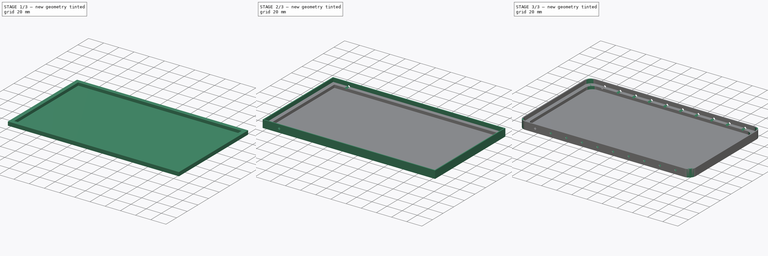
[diagram: build sequence overview — one tinted view per stage of 3, left to right]
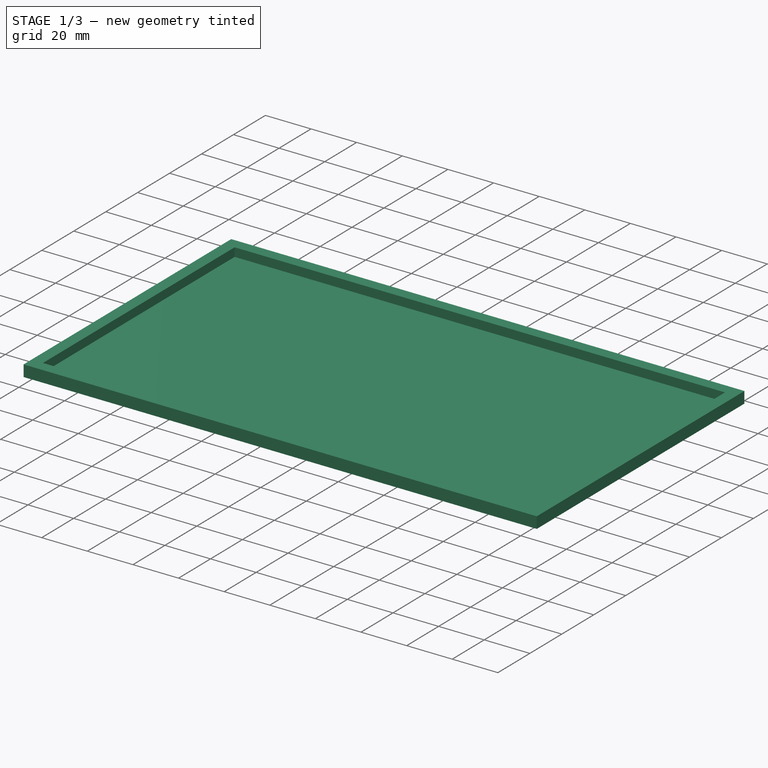
[diagram: stage 1 of 3 — iso view after this stage's code; geometry added in this stage tinted green]
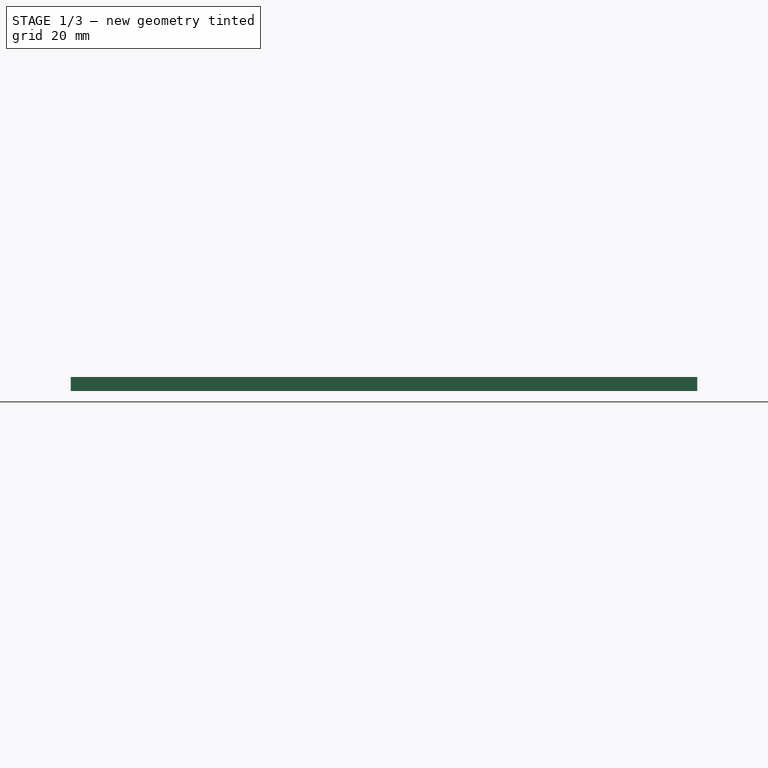
[diagram: stage 1 of 3 — front view after this stage's code; geometry added in this stage tinted green]
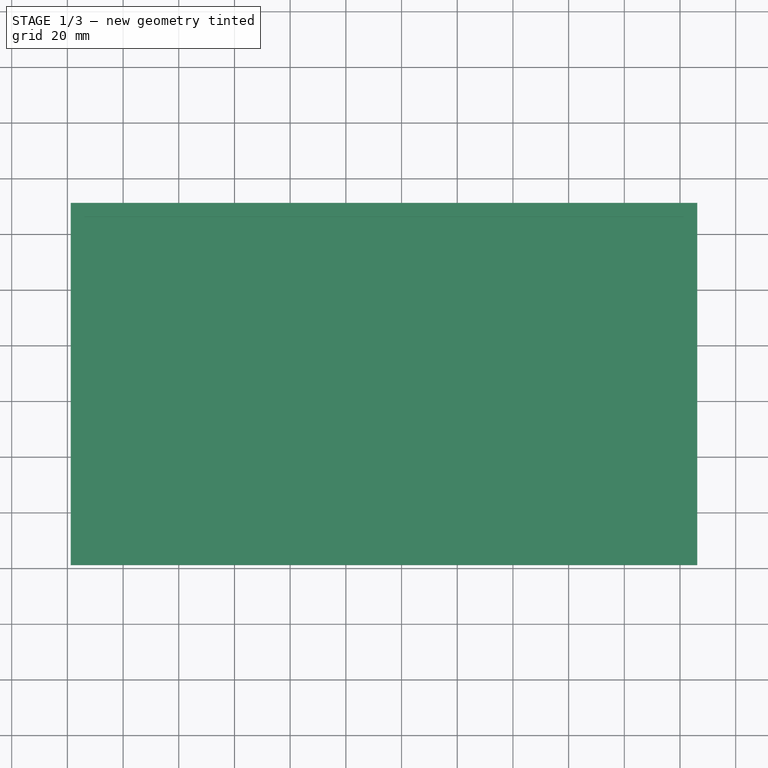
[diagram: stage 1 of 3 — top view after this stage's code; geometry added in this stage tinted green]
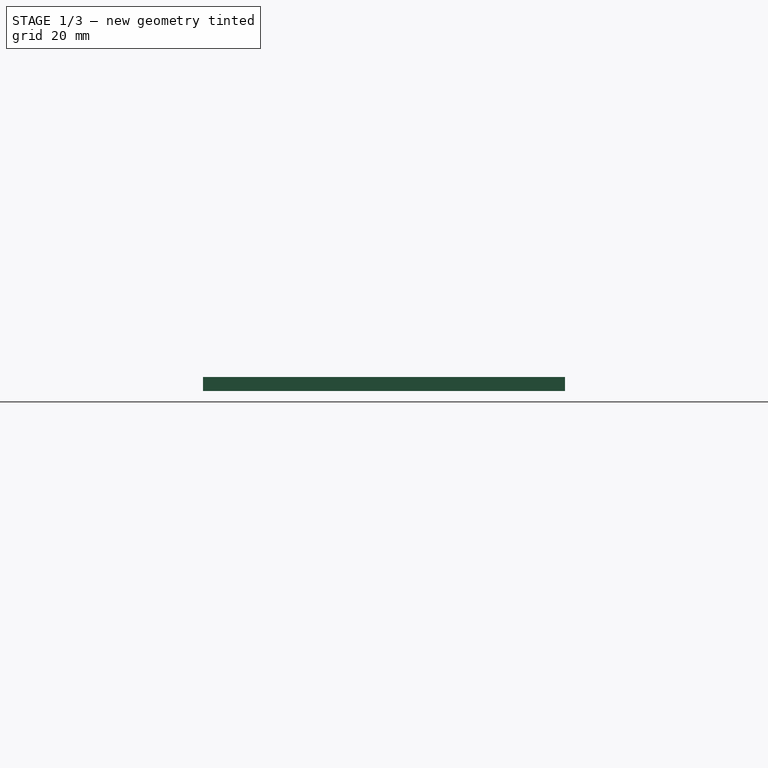
[diagram: stage 1 of 3 — right view after this stage's code; geometry added in this stage tinted green]
FCSTD DOCUMENT  (FreeCAD 1.0R39109 (Git))
Label: waterCollector
License: All rights reserved
LicenseURL: https://en.wikipedia.org/wiki/All_rights_reserved
objects: PartDesign::Pad×3, Sketcher::SketchObject×1, Spreadsheet::Sheet×1, PartDesign::SubtractiveBox×1, PartDesign::LinearPattern×1, PartDesign::Fillet×1, PartDesign::Body×1
note: 20 computed .brp shape members not serialized (recipe doc carries the construction recipe); baked Part::Feature solids carry a one-line shape summary decoded from their .brp

FEATURE [Sketcher::SketchObject] Sketch
  ArcFitTolerance = 1e-06
  AttachmentSupport = -> [XY_Plane]
  FullyConstrained = true
  MakeInternals = false
  MapMode = 5
  expr: Constraints[10] = <<constraints>>.tray_inner_h + 2 * <<constraints>>.wall_thickness
  expr: Constraints[19] = <<constraints>>.wall_thickness
  expr: Constraints[20] = <<constraints>>.wall_thickness
  expr: Constraints[21] = <<constraints>>.tray_inner_w
  expr: Constraints[22] = <<constraints>>.tray_inner_h
  expr: Constraints[31] = <<constraints>>.shoulder_w
  expr: Constraints[32] = <<constraints>>.shoulder_w
  expr: Constraints[33] = <<constraints>>.shoulder_w
  expr: Constraints[34] = <<constraints>>.shoulder_w
  expr: Constraints[9] = <<constraints>>.tray_inner_w + <<constraints>>.wall_thickness * 2
  sketch-geometry (12):
    g0: LineSegment StartX=0 StartY=0 StartZ=0 EndX=227.4 EndY=0 EndZ=0
    g1: LineSegment StartX=227.4 StartY=0 StartZ=0 EndX=227.4 EndY=132.4 EndZ=0
    g2: LineSegment StartX=227.4 StartY=132.4 StartZ=0 EndX=0 EndY=132.4 EndZ=0
    g3: LineSegment StartX=0 StartY=132.4 StartZ=0 EndX=0 EndY=0 EndZ=0
    g4: LineSegment StartX=1.2 StartY=1.2 StartZ=0 EndX=226.2 EndY=1.2 EndZ=0
    g5: LineSegment StartX=226.2 StartY=1.2 StartZ=0 EndX=226.2 EndY=131.2 EndZ=0
    g6: LineSegment StartX=226.2 StartY=131.2 StartZ=0 EndX=1.2 EndY=131.2 EndZ=0
    g7: LineSegment StartX=1.2 StartY=131.2 StartZ=0 EndX=1.2 EndY=1.2 EndZ=0
    g8: LineSegment StartX=6.2 StartY=126.2 StartZ=0 EndX=6.2 EndY=6.2 EndZ=0
    g9: LineSegment StartX=6.2 StartY=6.2 StartZ=0 EndX=221.2 EndY=6.2 EndZ=0
    g10: LineSegment StartX=221.2 StartY=6.2 StartZ=0 EndX=221.2 EndY=126.2 EndZ=0
    g11: LineSegment StartX=221.2 StartY=126.2 StartZ=0 EndX=6.2 EndY=126.2 EndZ=0
  constraints (35):
    c: Coincident(g0,g1)
    c: Coincident(g1,g2)
    c: Coincident(g2,g3)
    c: Coincident(g3,g0)
    c: Horizontal(g0)
    c: Horizontal(g2)
    c: Vertical(g1)
    c: Vertical(g3)
    c: Coincident(g0,g-1)
    c: Distance(g2) = 227.4
    c: Distance(g3) = 132.4
    c: Coincident(g4,g5)
    c: Coincident(g5,g6)
    c: Coincident(g6,g7)
    c: Coincident(g7,g4)
    c: Horizontal(g4)
    c: Horizontal(g6)
    c: Vertical(g5)
    c: Vertical(g7)
    c: DistanceX(g0,g4) = 1.2
    c: DistanceY(g0,g4) = 1.2
    c: Distance(g6) = 225
    c: Distance(g7) = 130
    c: Coincident(g8,g9)
    c: Coincident(g9,g10)
    c: Coincident(g10,g11)
    c: Coincident(g11,g8)
    c: Vertical(g8)
    c: Vertical(g10)
    c: Horizontal(g9)
    c: Horizontal(g11)
    c: DistanceX(g4,g8) = 5
    c: DistanceX(g10,g5) = 5
    c: DistanceY(g4,g9) = 5
    c: DistanceY(g8,g6) = 5
FEATURE [Spreadsheet::Sheet] Spreadsheet  label="constraints"
  cells = A1='tray_inner_w; B1(tray_inner_w)==225 mm; A2='tray_inner_h; B2(tray_inner_h)==130 mm; A3='wall_thickness; B3(wall_thickness)==1.2 mm; A4='tray_height; B4(tray_height)==10 mm; A5='shoulder_w; B5(shoulder_w)==5 mm; A6='shoulder_h; B6(shoulder_h)==5 mm
FEATURE [PartDesign::Pad] Pad
  Direction = (0,0,1)
  Length = 1.2
  Length2 = 10
  Profile = -> Sketch [Edge12,Edge9,Edge10,Edge11]
  ReferenceAxis = -> Sketch [N_Axis]
  Refine = true
  Suppressed = false
  Type = 0
  expr: Length = <<constraints>>.wall_thickness
FEATURE [PartDesign::Pad] Pad001
  BaseFeature = -> Pad
  Direction = (0,0,1)
  Length = 5
  Length2 = 10
  Profile = -> Sketch [Edge5,Edge10,Edge9,Edge8,Edge7,Edge12,Edge6,Edge11]
  ReferenceAxis = -> Sketch [N_Axis]
  Refine = true
  Suppressed = false
  Type = 0
  expr: Length = <<constraints>>.shoulder_h
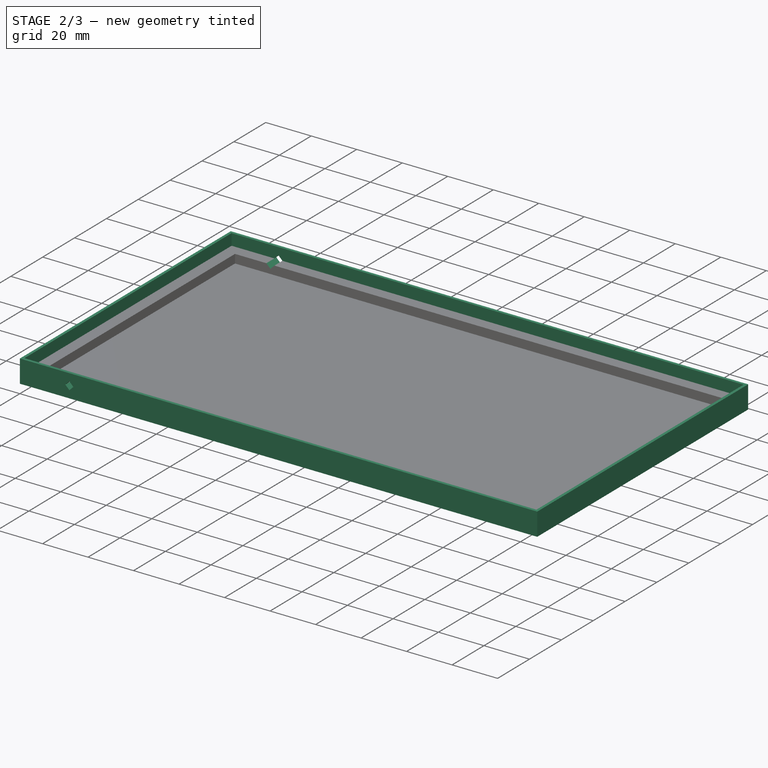
[diagram: stage 2 of 3 — iso view after this stage's code; geometry added in this stage tinted green]
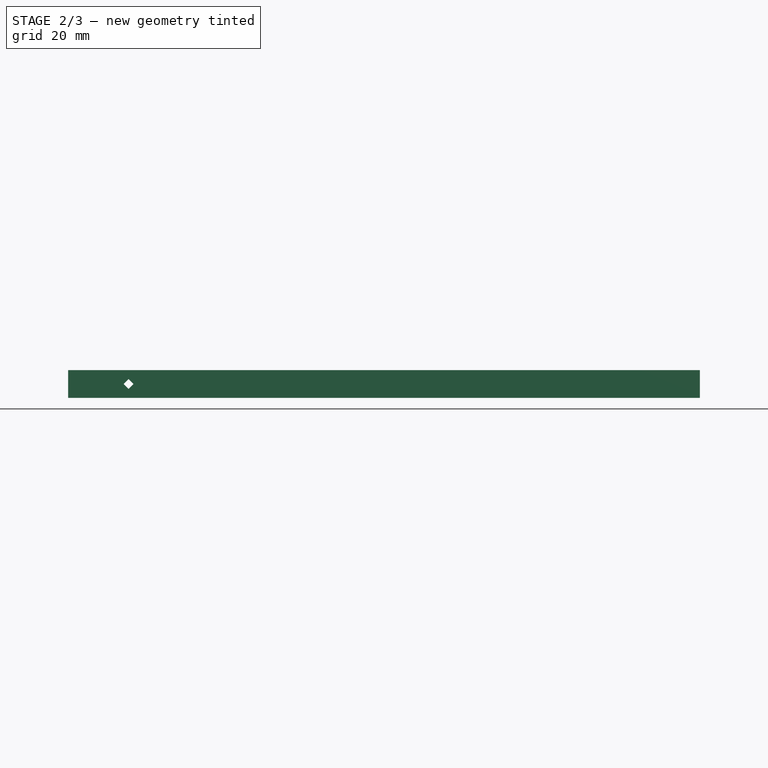
[diagram: stage 2 of 3 — front view after this stage's code; geometry added in this stage tinted green]
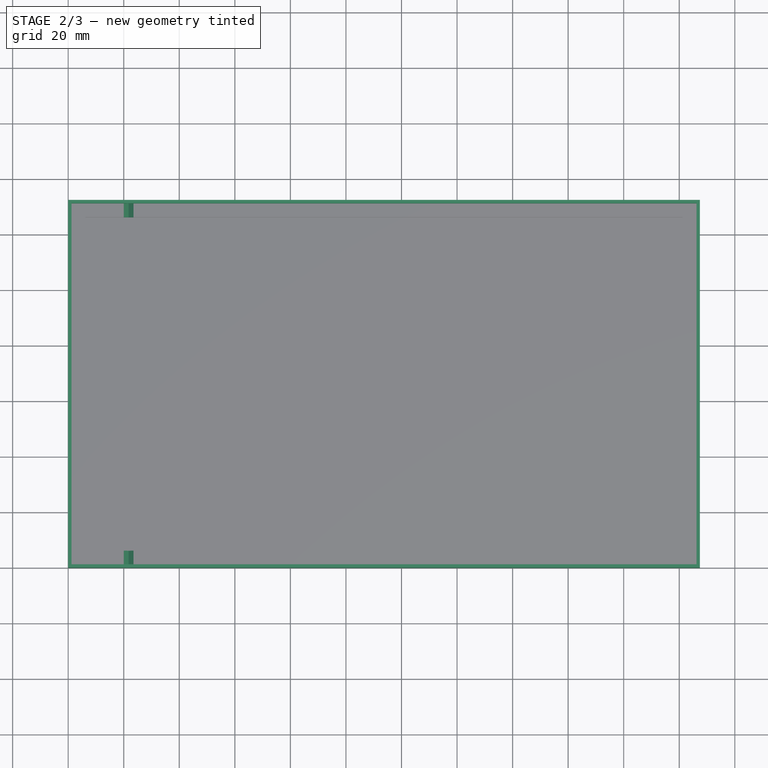
[diagram: stage 2 of 3 — top view after this stage's code; geometry added in this stage tinted green]
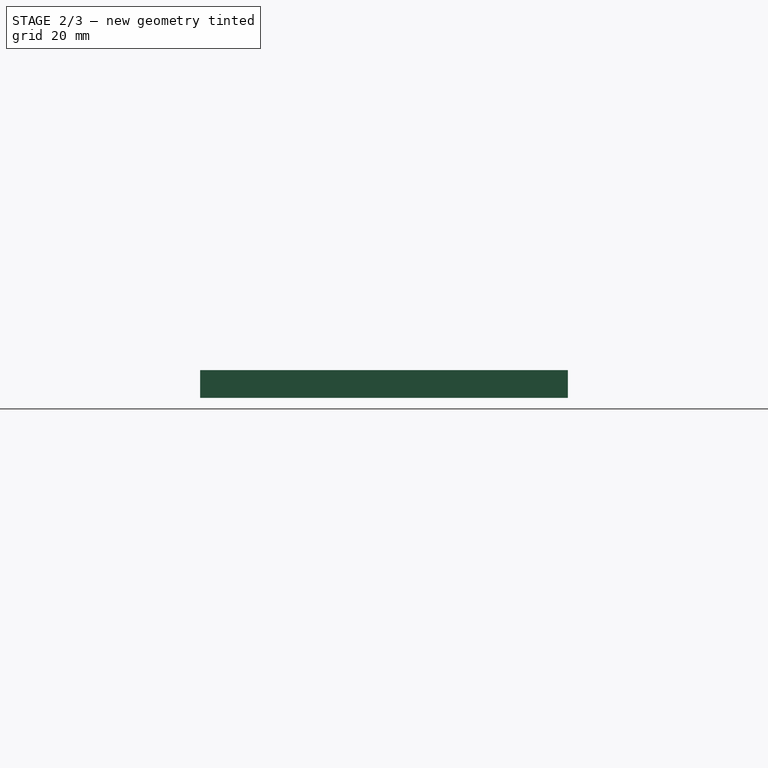
[diagram: stage 2 of 3 — right view after this stage's code; geometry added in this stage tinted green]
FEATURE [PartDesign::Pad] Pad002
  BaseFeature = -> Pad001
  Direction = (0,0,1)
  Length = 10
  Length2 = 10
  Profile = -> Sketch [Edge1,Edge5,Edge8,Edge4,Edge7,Edge3,Edge2,Edge6]
  ReferenceAxis = -> Sketch [N_Axis]
  Refine = true
  Suppressed = false
  Type = 0
  expr: Length = <<constraints>>.tray_height
FEATURE [PartDesign::SubtractiveBox] Box
  AttacherType = Attacher::AttachEngine3D
  AttachmentOffset = pos=(0,5,20) rot=(1,0,0;0.785398rad)
  AttachmentSupport = -> [Y_Axis]
  BaseFeature = -> Pad002
  Height = 2.5
  Length = 140
  MapMode = 2
  Placement = pos=(20,0,5) rot=(0.678598,0.678598,0.281085;2.59356rad)
  Refine = true
  Suppressed = false
  Width = 2.5
  expr: .AttachmentOffset.Base.y = <<constraints>>.shoulder_h
  expr: Height = Width
  expr: Width = <<constraints>>.shoulder_h / 2
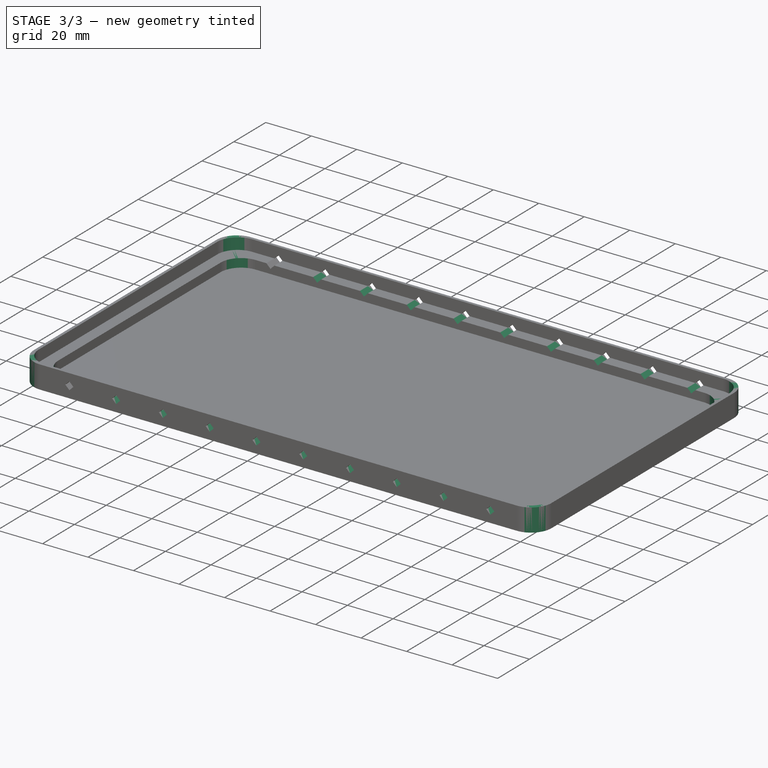
[diagram: stage 3 of 3 — iso view after this stage's code; geometry added in this stage tinted green]
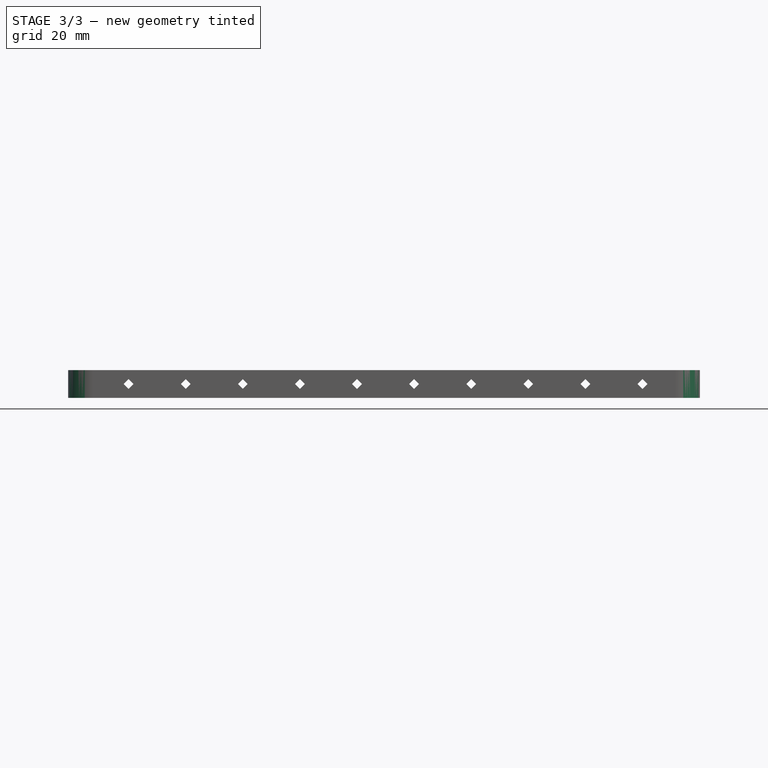
[diagram: stage 3 of 3 — front view after this stage's code; geometry added in this stage tinted green]
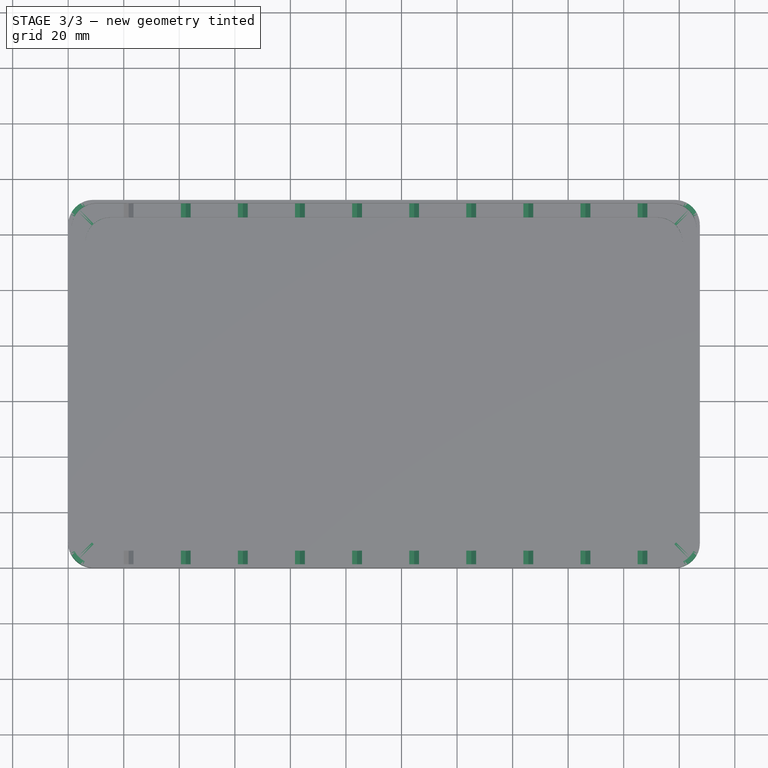
[diagram: stage 3 of 3 — top view after this stage's code; geometry added in this stage tinted green]
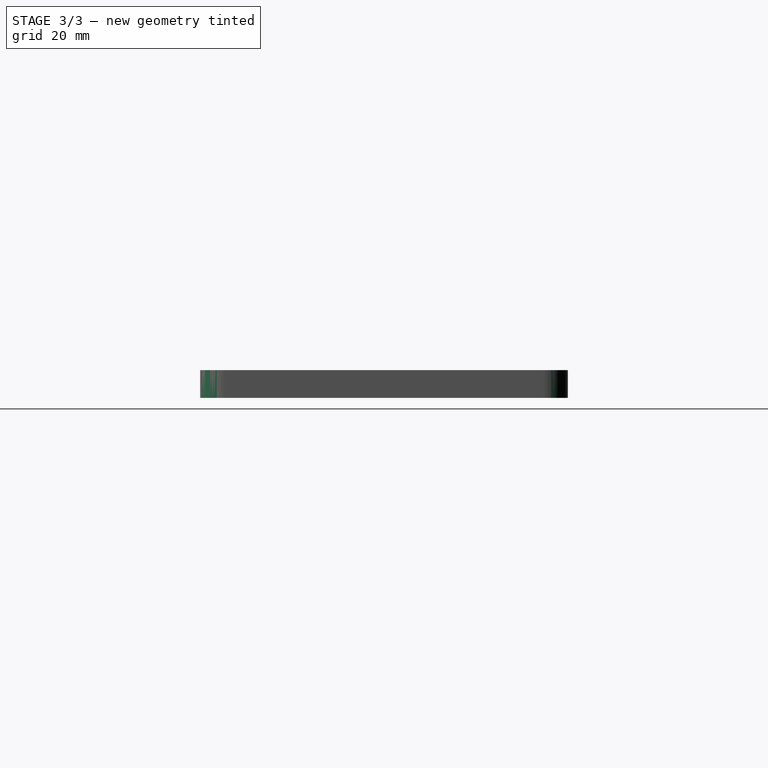
[diagram: stage 3 of 3 — right view after this stage's code; geometry added in this stage tinted green]
FEATURE [PartDesign::LinearPattern] LinearPattern
  BaseFeature = -> Box
  Direction = -> X_Axis
  Length = 185
  Mode = 0
  Occurrences = 10
  Offset = 20.5556
  Originals = -> [Box]
  Placement = pos=(20,0,5) rot=(0.678598,0.678598,0.281085;2.59356rad)
  Refine = true
  Suppressed = false
  TransformMode = 0
  expr: Length = <<constraints>>.tray_inner_w - 40 mm
  expr: Occurrences = 10
FEATURE [PartDesign::Fillet] Fillet
  Base = -> LinearPattern [Edge81,Edge49,Edge83,Edge79,Edge43,Edge147,Edge11,Edge9,Edge324,Edge227,Edge326,Edge225]
  BaseFeature = -> LinearPattern
  Placement = pos=(20,0,5) rot=(0.678598,0.678598,0.281085;2.59356rad)
  Radius = 9
  Refine = true
  SupportTransform = false
  Suppressed = false
  UseAllEdges = false
FEATURE [PartDesign::Body] Body  label="knife_block"
  AllowCompound = false
  Group = -> [Sketch,Pad,Pad001,Pad002,Box,LinearPattern,Fillet]
  Origin = -> Origin
  Tip = -> Fillet
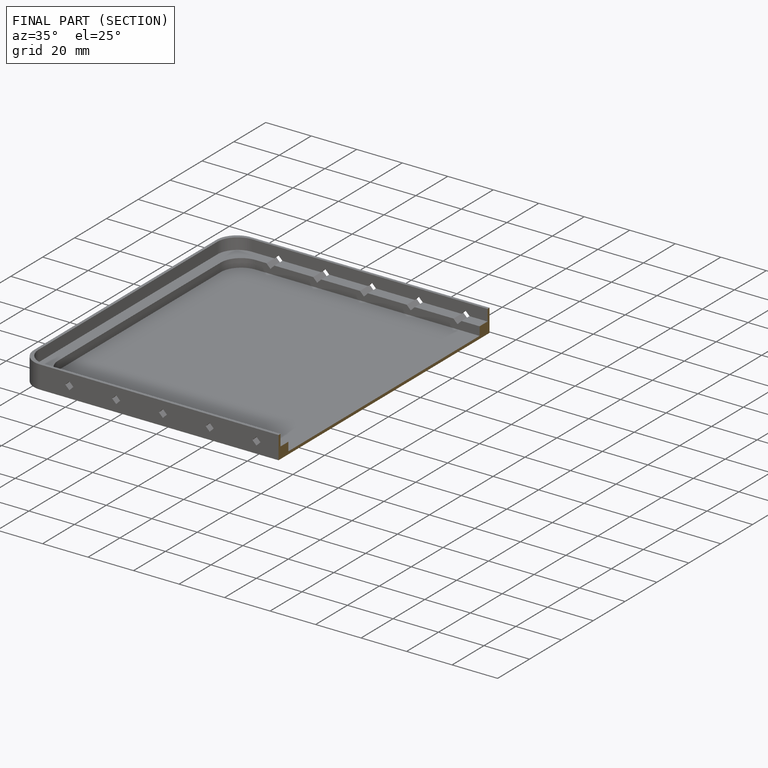
[diagram: finished part — half-section view (interior)]
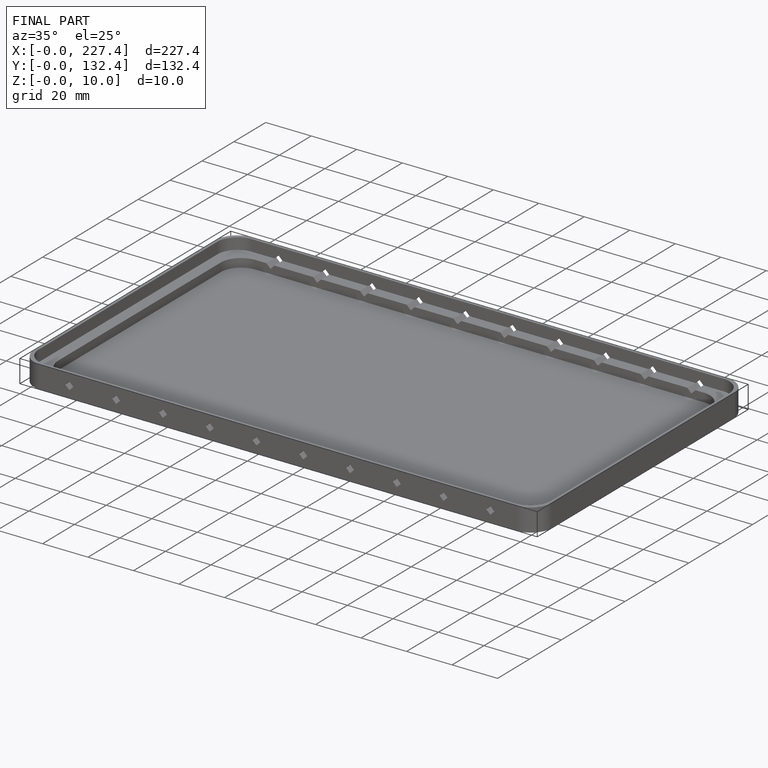
[diagram: finished part — iso view with bounding-box wireframe]
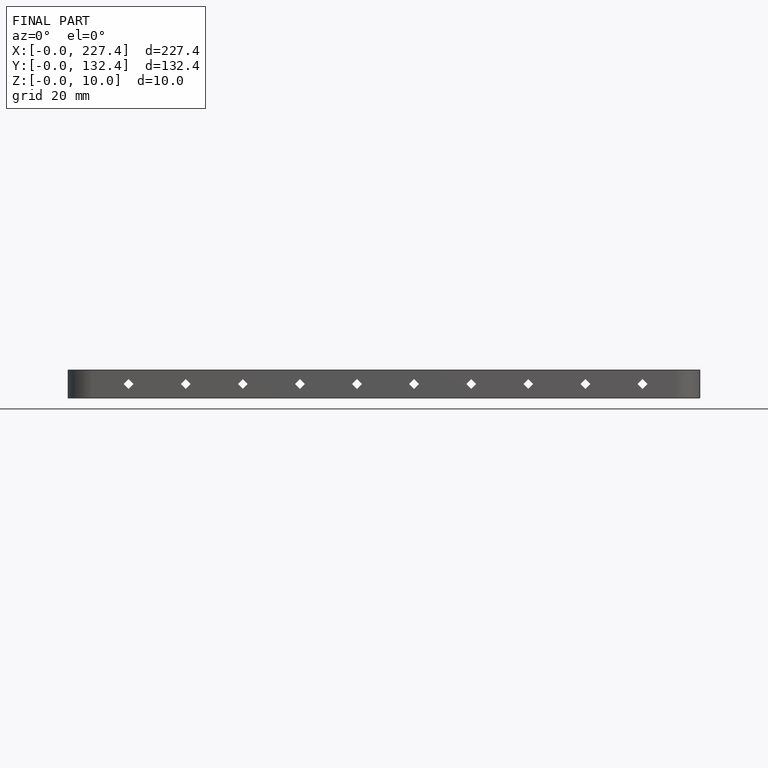
[diagram: finished part — front view with bounding-box wireframe]
